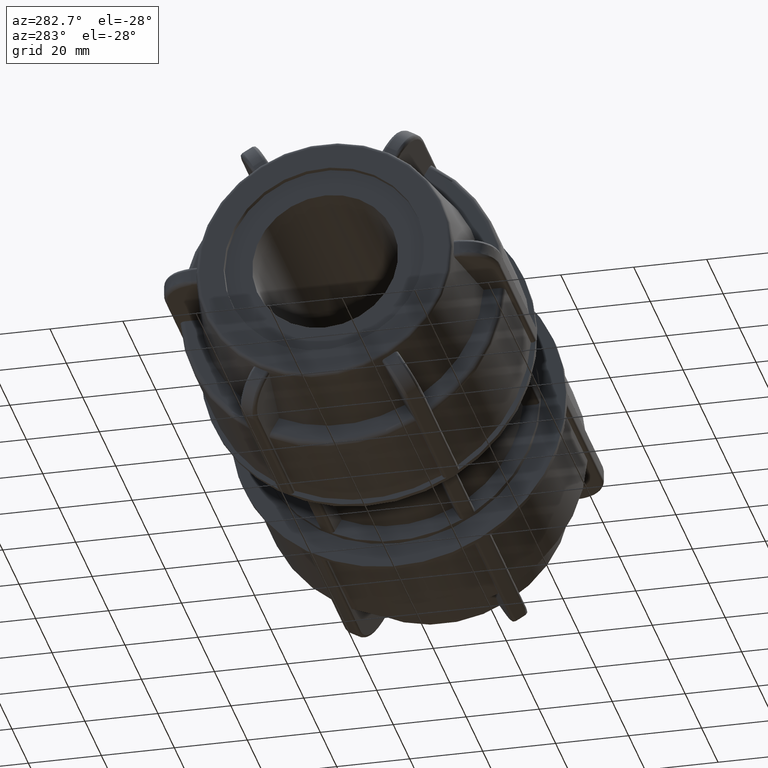
[diagram: clean part render]
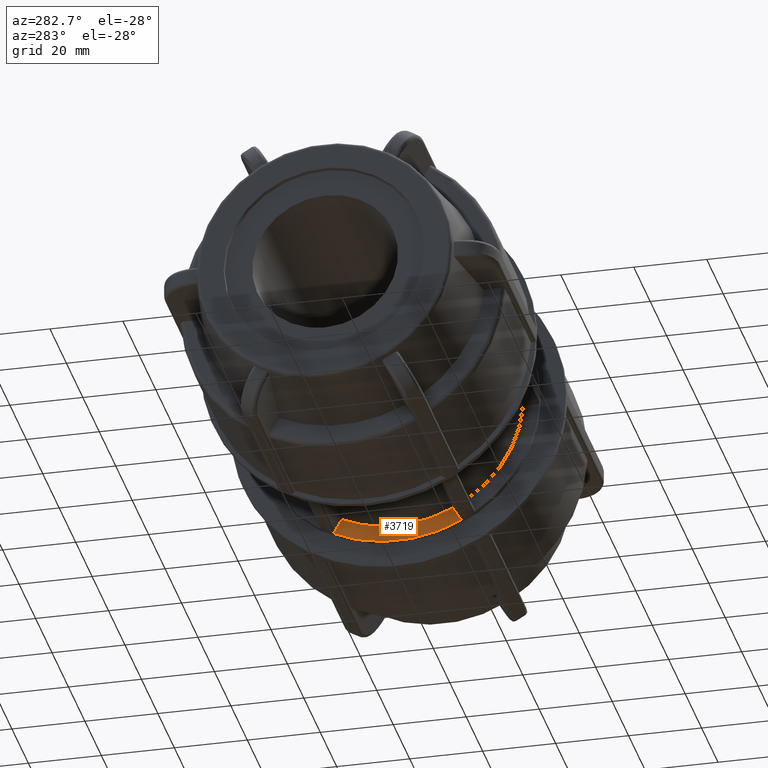
[diagram: same view with one face highlighted and labeled with its STEP entity id]
A machine part, auxiliary view. The second image highlights one B-rep face of the part: STEP entity #3719.
In plain terms, the highlighted planar face has unit normal (-1, -0, 0).
Its self-contained STEP definition (entity closure, byte-faithful):
#230=PLANE('',#3995);
#333=FACE_OUTER_BOUND('',#570,.T.);
#570=EDGE_LOOP('',(#2589,#2590,#2591,#2592,#2593,#2594));
#819=LINE('',#5589,#1047);
#842=LINE('',#5646,#1070);
#1047=VECTOR('',#4473,3.73180413180275);
#1070=VECTOR('',#4526,3.73180413180276);
#1262=CIRCLE('',#3942,39.1);
#1273=CIRCLE('',#3960,0.92);
#1279=CIRCLE('',#3971,0.92);
#1291=CIRCLE('',#3996,34.5);
#1507=VERTEX_POINT('',#5532);
#1508=VERTEX_POINT('',#5534);
#1525=VERTEX_POINT('',#5582);
#1527=VERTEX_POINT('',#5588);
#1535=VERTEX_POINT('',#5612);
#1546=VERTEX_POINT('',#5644);
#1888=EDGE_CURVE('',#1508,#1507,#1262,.T.);
#1912=EDGE_CURVE('',#1508,#1525,#1273,.F.);
#1915=EDGE_CURVE('',#1527,#1525,#819,.T.);
#1927=EDGE_CURVE('',#1535,#1507,#1279,.F.);
#1944=EDGE_CURVE('',#1535,#1546,#842,.T.);
#1958=EDGE_CURVE('',#1546,#1527,#1291,.T.);
#2589=ORIENTED_EDGE('',*,*,#1915,.T.);
#2590=ORIENTED_EDGE('',*,*,#1912,.F.);
#2591=ORIENTED_EDGE('',*,*,#1888,.T.);
#2592=ORIENTED_EDGE('',*,*,#1927,.F.);
#2593=ORIENTED_EDGE('',*,*,#1944,.T.);
#2594=ORIENTED_EDGE('',*,*,#1958,.T.);
#3719=ADVANCED_FACE('',(#333),#230,.T.);
#3942=AXIS2_PLACEMENT_3D('',#5535,#4417,#4418);
#3960=AXIS2_PLACEMENT_3D('',#5583,#4466,#4467);
#3971=AXIS2_PLACEMENT_3D('',#5613,#4497,#4498);
#3995=AXIS2_PLACEMENT_3D('',#5673,#4564,#4565);
#3996=AXIS2_PLACEMENT_3D('',#5674,#4566,#4567);
#4417=DIRECTION('center_axis',(-1.,-3.06161699786838E-16,0.));
#4418=DIRECTION('ref_axis',(-3.3251542972004E-16,1.,0.));
#4466=DIRECTION('center_axis',(1.,3.06161699786838E-16,0.));
#4467=DIRECTION('ref_axis',(0.,-0.276236104875731,-0.9610898055661));
#4473=DIRECTION('',(-1.53080849893419E-16,0.5,-0.866025403784439));
#4497=DIRECTION('center_axis',(1.,3.06161699786838E-16,0.));
#4498=DIRECTION('ref_axis',(0.,0.276236104875734,-0.961089805566099));
#4526=DIRECTION('',(-1.53080849893419E-16,0.5,0.866025403784439));
#4564=DIRECTION('center_axis',(-1.,-3.06161699786838E-16,0.));
#4565=DIRECTION('ref_axis',(0.,0.,1.));
#4566=DIRECTION('center_axis',(1.,3.06161699786838E-16,0.));
#4567=DIRECTION('ref_axis',(0.,0.,-1.));
#5532=CARTESIAN_POINT('',(16.06,-18.3133124574255,-34.5460936552413));
#5534=CARTESIAN_POINT('',(16.06,18.3133124574255,-34.5460936552413));
#5535=CARTESIAN_POINT('Origin',(16.06,4.91695689857662E-15,0.));
#5582=CARTESIAN_POINT('',(16.06,17.0856676163573,-34.1932443927651));
#5583=CARTESIAN_POINT('Origin',(16.06,17.882410987839,-33.7332443927651));
#5588=CARTESIAN_POINT('',(16.06,15.2197655504559,-30.9614072126762));
#5589=CARTESIAN_POINT('',(16.06,12.6537151516701,-26.5168775471968));
#5612=CARTESIAN_POINT('',(16.06,-17.0856676163573,-34.1932443927651));
#5613=CARTESIAN_POINT('Origin',(16.06,-17.882410987839,-33.7332443927651));
#5644=CARTESIAN_POINT('',(16.06,-15.2197655504559,-30.9614072126762));
#5646=CARTESIAN_POINT('',(16.06,-1.72645356087585,-7.59030528434519));
#5673=CARTESIAN_POINT('Origin',(16.06,39.1,0.));
#5674=CARTESIAN_POINT('Origin',(16.06,4.91695689857663E-15,0.));